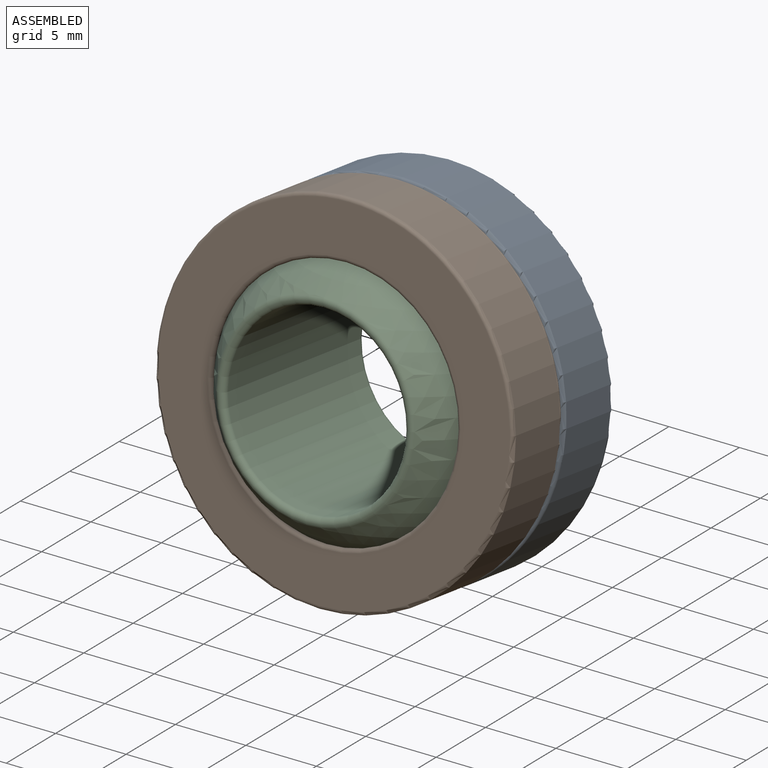
[diagram: assembled view]
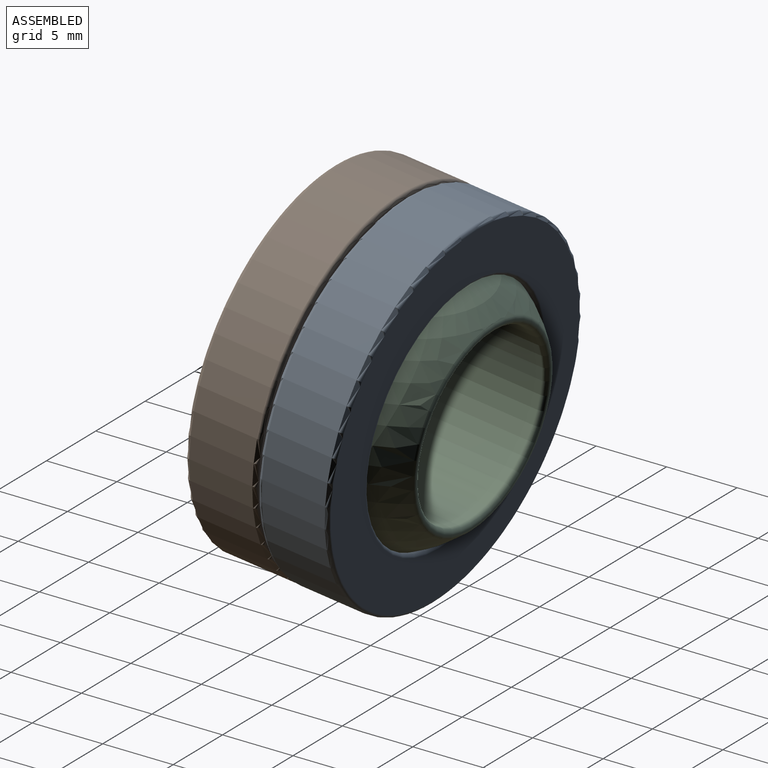
[diagram: assembled view, second angle]
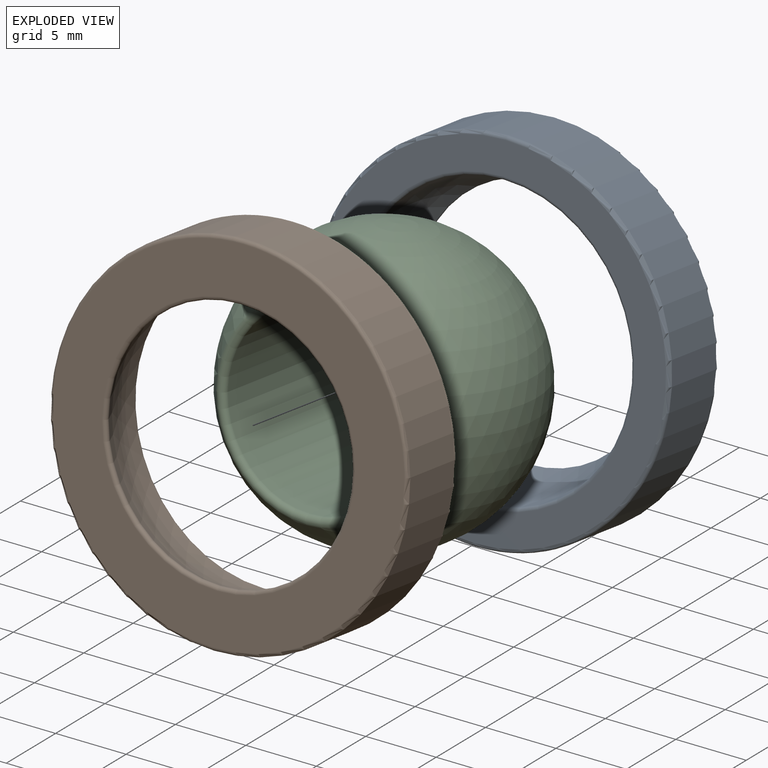
[diagram: exploded view]
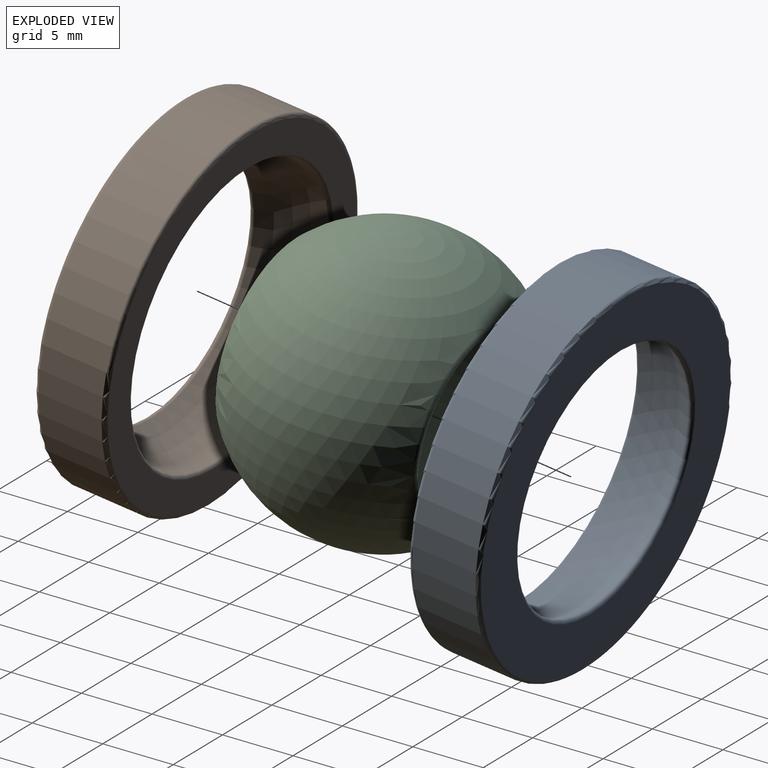
[diagram: exploded view, second angle]
ASSEMBLY  parts=3 mates=2
PART A: 8 faces, bbox 27.4x5x27.4 mm
  f0: cylinder r=12.67mm len=25.35mm, axis (0,1,0), area 360.1mm2, adj f6,f7
  f1: plane 24.84x24.84mm, normal (0,-1,0), area 233.4mm2, adj f4,f7
  f2: plane 24.84x24.84mm, normal (0,1,0), area 158.4mm2, adj f5,f6
  f3: sphere r=9.94mm, area 275.5mm2, adj f4,f5
  f4: torus R=8.94mm, axis (0,-1,0), area 29mm2, adj f1,f3
  f5: torus R=10.19mm, axis (0,-1,0), area 24.5mm2, adj f2,f3
  f6: torus R=12.42mm, axis (0,-1,0), area 31.5mm2, adj f0,f2
  f7: torus R=12.42mm, axis (0,-1,0), area 31.5mm2, adj f0,f1
PART B: same geometry as A
PART C: 4 faces, bbox 19.8x19.8x19.8 mm
  f0: sphere r=9.92mm, area 875.9mm2, adj f2,f3
  f1: cylinder r=6.35mm len=13.51mm, axis (0,1,0), area 539.2mm2, adj f2,f3
  f2: torus R=6.73mm, axis (0,-1,0), area 37.3mm2, adj f0,f1
  f3: torus R=6.73mm, axis (0,1,0), area 37.3mm2, adj f0,f1
PLACE A rot(axis=(1,0,0),172.7deg) t=(-3.27,-6.38,-0.27)mm
PLACE B rot(axis=(-1,0,0),7.3deg) t=(-3.27,-6.28,-0.29)mm
PLACE C rot(axis=(1,0,0),172.7deg) t=(-3.27,-6.33,-0.28)mm
MATE cylindrical C.f1 <-> B.f0  axis (0,-0.99,0.13) through (-3.27,-13.03,0.58)mm
MATE cylindrical C.f1 <-> A.f0  axis (0,-0.99,0.13) through (-3.27,-13.03,0.58)mm
